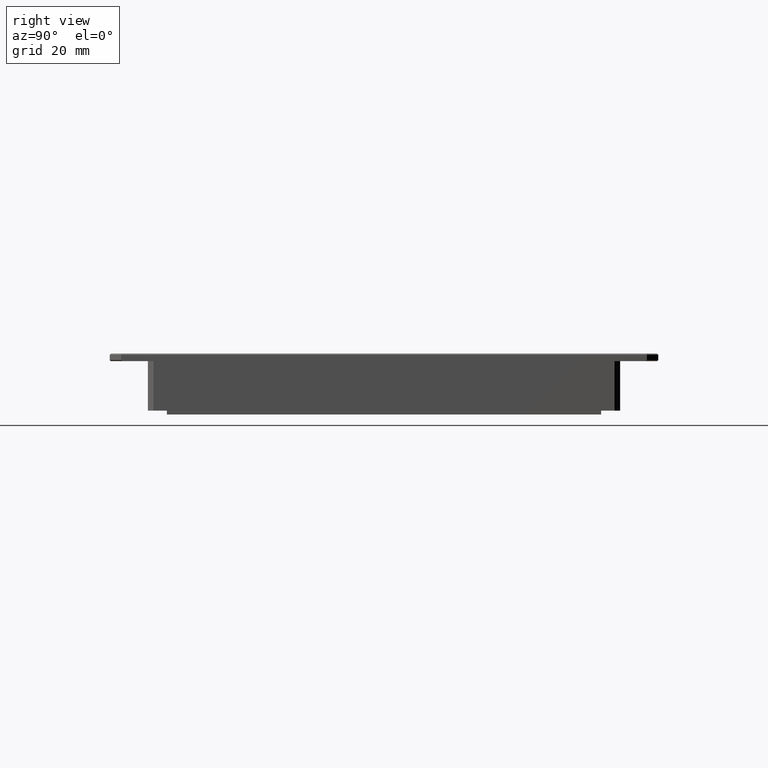
[diagram: clean part render]
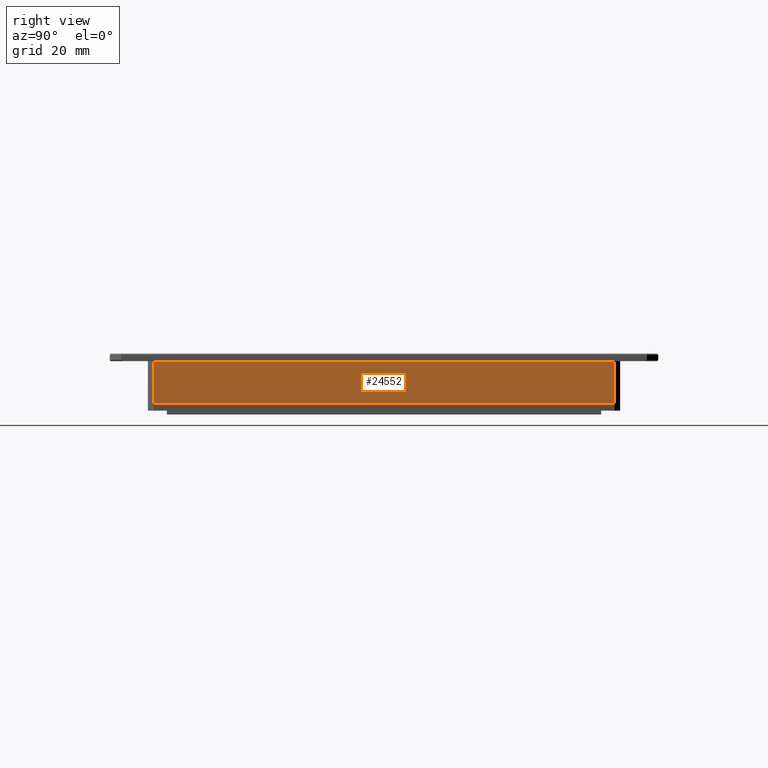
[diagram: same view with one face highlighted and labeled with its STEP entity id]
A machine part, right view. The second image highlights one B-rep face of the part: STEP entity #24552.
In plain terms, the highlighted planar face has unit normal (-1, 0, 0).
Its self-contained STEP definition (entity closure, byte-faithful):
#1130 = VERTEX_POINT ( 'NONE', #17521 ) ;
#1720 = DIRECTION ( 'NONE',  ( 0.0000000000000000000, 0.0000000000000000000, 1.000000000000000000 ) ) ;
#6626 = EDGE_CURVE ( 'NONE', #76491, #11317, #47954, .T. ) ;
#7173 = AXIS2_PLACEMENT_3D ( 'NONE', #50745, #86229, #1720 ) ;
#10960 = CARTESIAN_POINT ( 'NONE',  ( 62.64490263459336500, 71.38965253913710300, 10.99999999998362900 ) ) ;
#11317 = VERTEX_POINT ( 'NONE', #90238 ) ;
#11814 = DIRECTION ( 'NONE',  ( -0.0000000000000000000, -1.000000000000000000, -0.0000000000000000000 ) ) ;
#13655 = ORIENTED_EDGE ( 'NONE', *, *, #6626, .F. ) ;
#15433 = EDGE_CURVE ( 'NONE', #35404, #1130, #33211, .T. ) ;
#17521 = CARTESIAN_POINT ( 'NONE',  ( 62.64490263459336500, -49.61034746086291100, -1.637123596409662000E-011 ) ) ;
#21103 = ORIENTED_EDGE ( 'NONE', *, *, #15433, .T. ) ;
#23726 = VECTOR ( 'NONE', #89678, 1000.000000000000000 ) ;
#23832 = VECTOR ( 'NONE', #11814, 1000.000000000000000 ) ;
#24552 = ADVANCED_FACE ( 'NONE', ( #80718 ), #63968, .F. ) ;
#26148 = CARTESIAN_POINT ( 'NONE',  ( 62.64490263459336500, 71.38965253913708900, 10.99999999998362900 ) ) ;
#33211 = LINE ( 'NONE', #41367, #62991 ) ;
#34554 = EDGE_LOOP ( 'NONE', ( #13655, #50734, #21103, #36665 ) ) ;
#35404 = VERTEX_POINT ( 'NONE', #53598 ) ;
#36665 = ORIENTED_EDGE ( 'NONE', *, *, #61368, .F. ) ;
#38326 = EDGE_CURVE ( 'NONE', #35404, #76491, #63233, .T. ) ;
#41051 = DIRECTION ( 'NONE',  ( -0.0000000000000000000, -0.0000000000000000000, -1.000000000000000000 ) ) ;
#41367 = CARTESIAN_POINT ( 'NONE',  ( 62.64490263459336500, -49.61034746086291800, 10.99999999998362900 ) ) ;
#47954 = LINE ( 'NONE', #26148, #23726 ) ;
#48511 = DIRECTION ( 'NONE',  ( 0.0000000000000000000, 1.000000000000000000, -0.0000000000000000000 ) ) ;
#50734 = ORIENTED_EDGE ( 'NONE', *, *, #38326, .F. ) ;
#50745 = CARTESIAN_POINT ( 'NONE',  ( 62.64490263459336500, -51.11034746086289000, 10.99999999998362900 ) ) ;
#53598 = CARTESIAN_POINT ( 'NONE',  ( 62.64490263459336500, -49.61034746086292600, 10.99999999998362900 ) ) ;
#56848 = LINE ( 'NONE', #66319, #23832 ) ;
#61368 = EDGE_CURVE ( 'NONE', #11317, #1130, #56848, .T. ) ;
#62991 = VECTOR ( 'NONE', #41051, 1000.000000000000000 ) ;
#63233 = LINE ( 'NONE', #89579, #86470 ) ;
#63968 = PLANE ( 'NONE',  #7173 ) ;
#66319 = CARTESIAN_POINT ( 'NONE',  ( 62.64490263459336500, 72.88965253913710300, -1.637058544279312900E-011 ) ) ;
#76491 = VERTEX_POINT ( 'NONE', #10960 ) ;
#80718 = FACE_OUTER_BOUND ( 'NONE', #34554, .T. ) ;
#86229 = DIRECTION ( 'NONE',  ( -1.000000000000000000, 0.0000000000000000000, 0.0000000000000000000 ) ) ;
#86470 = VECTOR ( 'NONE', #48511, 1000.000000000000000 ) ;
#89579 = CARTESIAN_POINT ( 'NONE',  ( 62.64490263459336500, -51.11034746086289000, 10.99999999998362900 ) ) ;
#89678 = DIRECTION ( 'NONE',  ( -0.0000000000000000000, -0.0000000000000000000, -1.000000000000000000 ) ) ;
#90238 = CARTESIAN_POINT ( 'NONE',  ( 62.64490263459336500, 71.38965253913710300, -1.637058544279312900E-011 ) ) ;